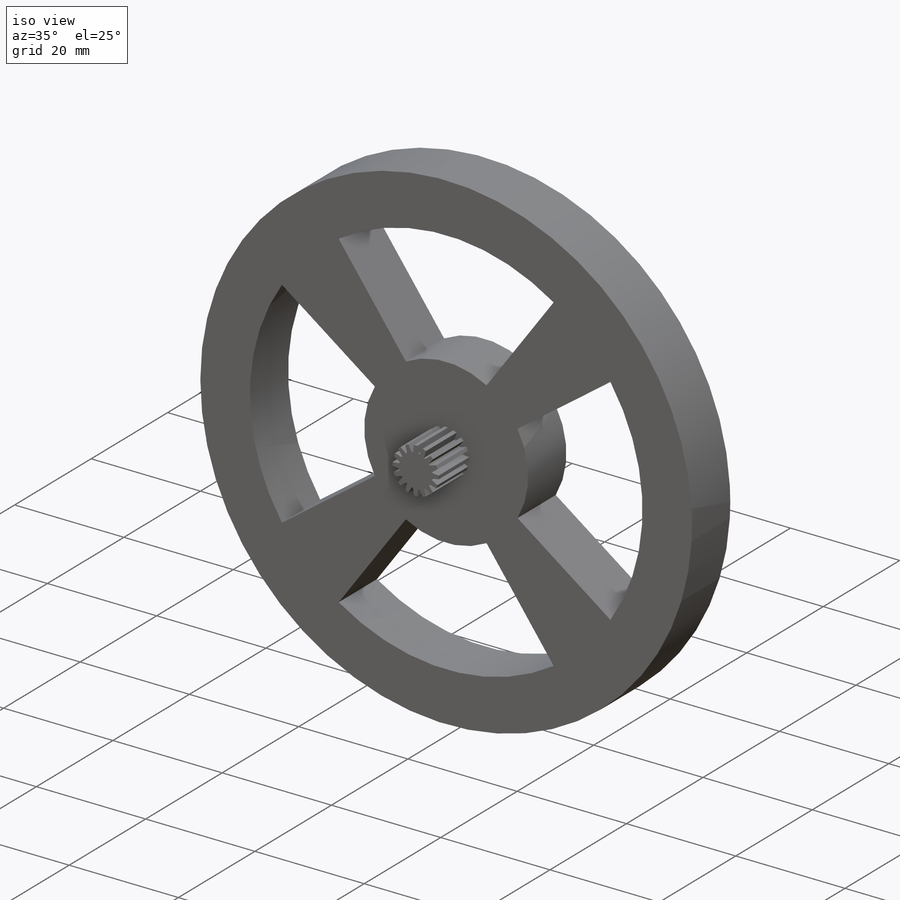
[diagram: iso view]
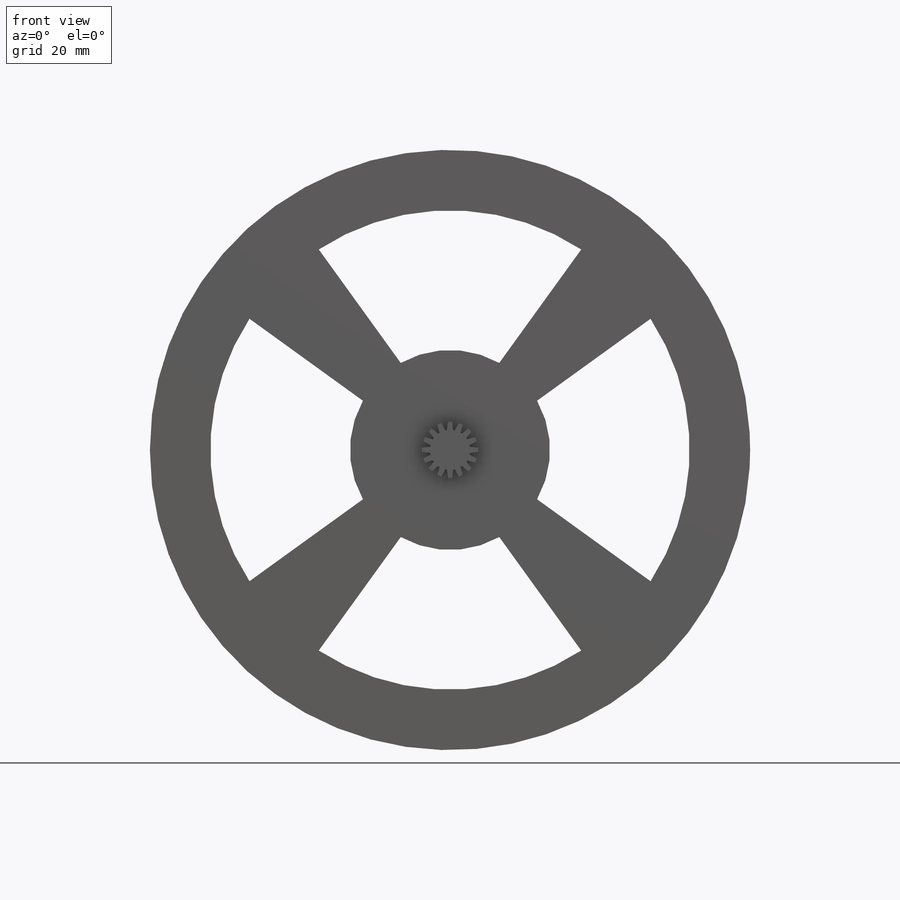
[diagram: front view]
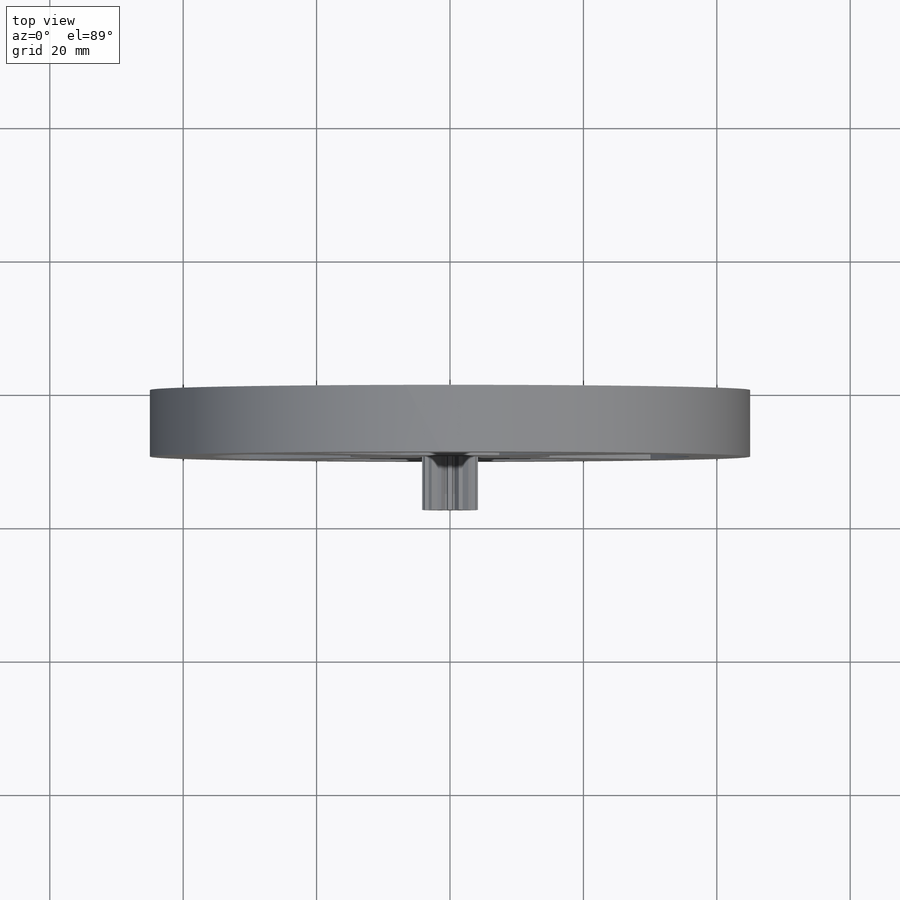
[diagram: top view]
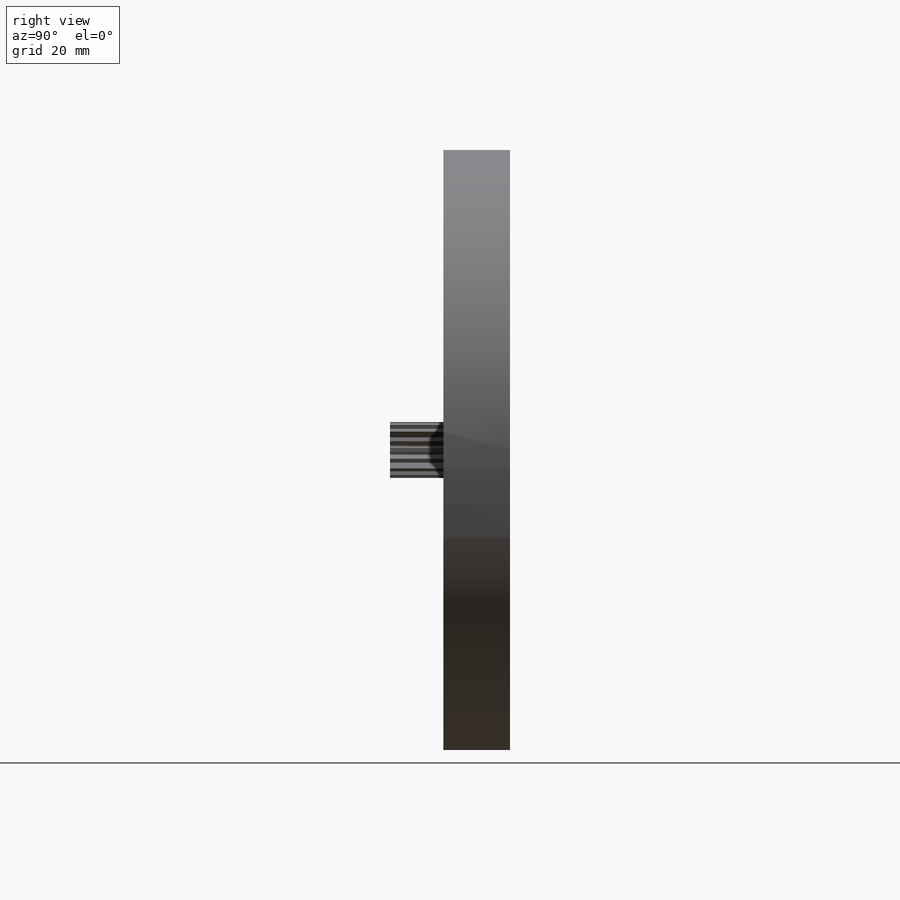
[diagram: right view]
SOLIDWORKS PART (.sldprt)
format: sldprt  version: not decoded by parser v0  size: 241,152 bytes
history: native  units: mm
features: sketch x4, plane x3, extrude x3, pattern_circular x2, material x1, cut_extrude x1 (+9 scaffold rows collapsed)
feature tree (23):
  scaffold x9  (default folders/planes/origin — collapsed)
  material  "Material <não especificado>"
  plane  "Plano frontal"
  plane  "Plano superior"
  plane  "Plano direito"
  sketch  "Esboço1"  dims[D1=~53.579903mm]
  extrude  "Ressalto-extrusão1"  Depth=10mm
  sketch  "Esboço2"  dims[c1.D1=25.0mm c2.D1=70.0deg]
  cut_extrude  "Corte-extrusão1"  Depth=10mm
  pattern_circular  "PadrãoCircular1"  Count=4 Angle=360deg
  sketch  "Esboço3"  dims[D1=5.0mm]
  extrude  "Ressalto-extrusão2"  Depth=8mm
  sketch  "Esboço4"  dims[c1.D1=1.0mm c2.D1=83.0deg]
  extrude  "Ressalto-extrusão3"  Depth=8mm
  pattern_circular  "PadrãoCircular2"  Count=16 Angle=360deg
decode coverage: 10 of 10 modeling features carry decoded parameters
note: ~ marks probable driven/reference dimensions
note: suppression state not decoded; provenance and decode notes live in map.json
